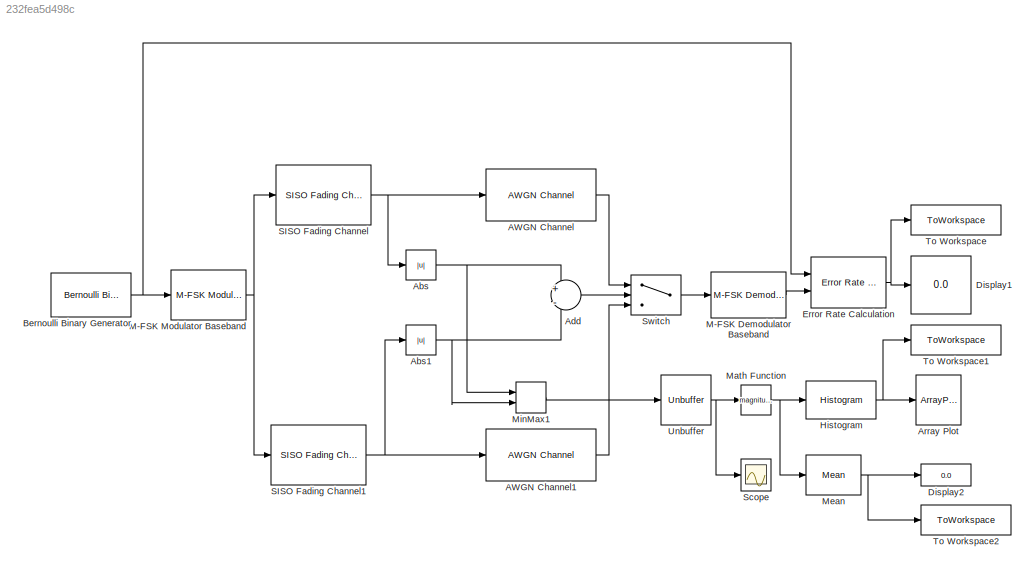
MODEL slx_232fea5d498c
KIND model
CONFIG AbsTol = auto
CONFIG EnableMultiTasking = off
CONFIG FixedStep = auto
CONFIG MaxStep = auto
CONFIG MinStep = auto
CONFIG RelTol = 1e-3
CONFIG SampleTimeConstraint = Unconstrained
CONFIG SolverName = FixedStepDiscrete
CONFIG StartTime = 0.0
CONFIG StopTime = 100
BLOCK [Reference] AWGN Channel  REF=commchan3/AWGN
Channel
  InputProcessing = Columns as channels (frame based)
  Ports = [1, 1]
  SourceBlock = commchan3/AWGN\nChannel
  SourceType = AWGN Channel
BLOCK [Reference] AWGN Channel1  REF=commchan3/AWGN
Channel
  InputProcessing = Columns as channels (frame based)
  Ports = [1, 1]
  SourceBlock = commchan3/AWGN\nChannel
  SourceType = AWGN Channel
BLOCK [Abs] Abs
  SaturateOnIntegerOverflow = off
BLOCK [Abs] Abs1
  SaturateOnIntegerOverflow = off
BLOCK [Sum] Add
  Inputs = +-
  Ports = [2, 1]
BLOCK [ArrayPlot] Array Plot
  GraphicalSettings = {"Style":{"BackgroundColor":[0.12941176470588237,0.12941176470588237,0.12941176470588237],"AxesColor":[0.070588235294117646,0.070588235294117646,0.070588235294117646],"LabelsColor":[0.85098039215686272,0.85098039215686272,0.85098039215686272],"PreserveColors":false,"Visible":[true,true,true,true,true,true,true],"LineStyle":["-","-","-","-","-","-","-"],"LineWidth":[1.5,1.5,1.5,1.5,1.5,1.5,1.5],"Ba...<+593ch>
  MaximizeAxes = Off
  OpenAtSimulationStart = off
  Ports = [1]
  SampleIncrement = 0.1
  ScopeFrameLocation = window
  WasSavedAsWebScope = on
  WindowPosition = [959.000000,346.000000,800.000000,500.000000,]
  YLimits = [-0.0151 0.1382]
BLOCK [Reference] Bernoulli Binary Generator  REF=commrandsrc3/Bernoulli Binary
Generator
  Ports = [0, 1]
  SourceBlock = commrandsrc3/Bernoulli Binary\nGenerator
  SourceType = Bernoulli Binary Generator
BLOCK [Display] Display1
  Decimation = 1
  Ports = [1]
BLOCK [Display] Display2
  Decimation = 1
  Ports = [1]
BLOCK [Reference] Error Rate Calculation  REF=commsink2/Error Rate
Calculation
  Ports = [2, 1]
  SourceBlock = commsink2/Error Rate\nCalculation
  SourceType = Error Rate Calculation
BLOCK [Reference] Histogram  REF=dspstat3/Histogram
  Ports = [1, 1]
  SourceBlock = dspstat3/Histogram
  SourceType = Histogram
  UserDataPersistent = on
BLOCK [Reference] M-FSK Demodulator Baseband  REF=commdigbbndfm2/M-FSK
Demodulator
Baseband
  Ports = [1, 1]
  SourceBlock = commdigbbndfm2/M-FSK\nDemodulator\nBaseband
  SourceType = M-FSK Demodulator Baseband
  UserDataPersistent = on
BLOCK [Reference] M-FSK Modulator Baseband  REF=commdigbbndfm2/M-FSK
Modulator
Baseband
  Ports = [1, 1]
  SourceBlock = commdigbbndfm2/M-FSK\nModulator\nBaseband
  SourceType = M-FSK Modulator Baseband
  UserDataPersistent = on
BLOCK [Math] Math Function
  Operator = magnitude^2
  Ports = [1, 1]
BLOCK [Reference] Mean  REF=dspstat3/Mean
  Ports = [1, 1]
  SourceBlock = dspstat3/Mean
  SourceType = Mean
  UserDataPersistent = on
BLOCK [MinMax] MinMax1
  Function = max
  Inputs = 2
  Ports = [2, 1]
BLOCK [Reference] SISO Fading Channel  REF=commchan3/SISO Fading Channel
  Ports = [1, 1]
  SourceBlock = commchan3/SISO Fading Channel
  SourceType = SISO Fading Channel
BLOCK [Reference] SISO Fading Channel1  REF=commchan3/SISO Fading Channel
  Ports = [1, 1]
  SourceBlock = commchan3/SISO Fading Channel
  SourceType = SISO Fading Channel
BLOCK [Scope] Scope
  Floating = off
  NumInputPorts = 1
  Ports = [1]
  ScopeSpecificationString = Simulink.scopes.TimeScopeBlockCfg('CurrentConfiguration', extmgr.ConfigurationSet(extmgr.Configuration('Core','General UI',true,'DisplayFullSourceName',true,'FigureColor',[0.129411764705882 0.129411764705882 0.129411764705882]),extmgr.Configuration('Sources','WiredSimulink',true,'DataLogging',true,'DataLoggingVariableName','Scope','DataLoggingLimitDataPoints',true,'DataLoggingMaxPoints','1600','Da...<+1735ch>
BLOCK [Switch] Switch
  Criteria = u2 > Threshold
  InputSameDT = off
  SaturateOnIntegerOverflow = off
BLOCK [ToWorkspace] To Workspace
  FixptAsFi = on
  MaxDataPoints = 1
  Ports = [1]
  SampleTime = -1
  VariableName = Errors
BLOCK [ToWorkspace] To Workspace1
  FixptAsFi = on
  MaxDataPoints = 1
  Ports = [1]
  SampleTime = -1
  VariableName = Hist
BLOCK [ToWorkspace] To Workspace2
  FixptAsFi = on
  MaxDataPoints = 1
  Ports = [1]
  SampleTime = -1
  VariableName = MeanPower
BLOCK [Unbuffer] Unbuffer
  Ports = [1, 1]
LINE AWGN Channel1:1 -> Switch:3
LINE AWGN Channel:1 -> Switch:1
NET Abs1:1 -> Add:2, MinMax1:2
NET Abs:1 -> Add:1, MinMax1:1
LINE Add:1 -> Switch:2
NET Bernoulli Binary Generator:1 -> Error Rate Calculation:1, M-FSK Modulator Baseband:1
NET Error Rate Calculation:1 -> Display1:1, To Workspace:1
NET Histogram:1 -> Array Plot:1, To Workspace1:1
LINE M-FSK Demodulator Baseband:1 -> Error Rate Calculation:2
NET M-FSK Modulator Baseband:1 -> SISO Fading Channel1:1, SISO Fading Channel:1
NET Math Function:1 -> Histogram:1, Mean:1
NET Mean:1 -> Display2:1, To Workspace2:1
LINE MinMax1:1 -> Unbuffer:1
NET SISO Fading Channel1:1 -> AWGN Channel1:1, Abs1:1
NET SISO Fading Channel:1 -> AWGN Channel:1, Abs:1
LINE Switch:1 -> M-FSK Demodulator Baseband:1
NET Unbuffer:1 -> Math Function:1, Scope:1
note: NET lines group one-source signal fan-out (src -> all destinations, sorted); 1:1 wires keep LINE
